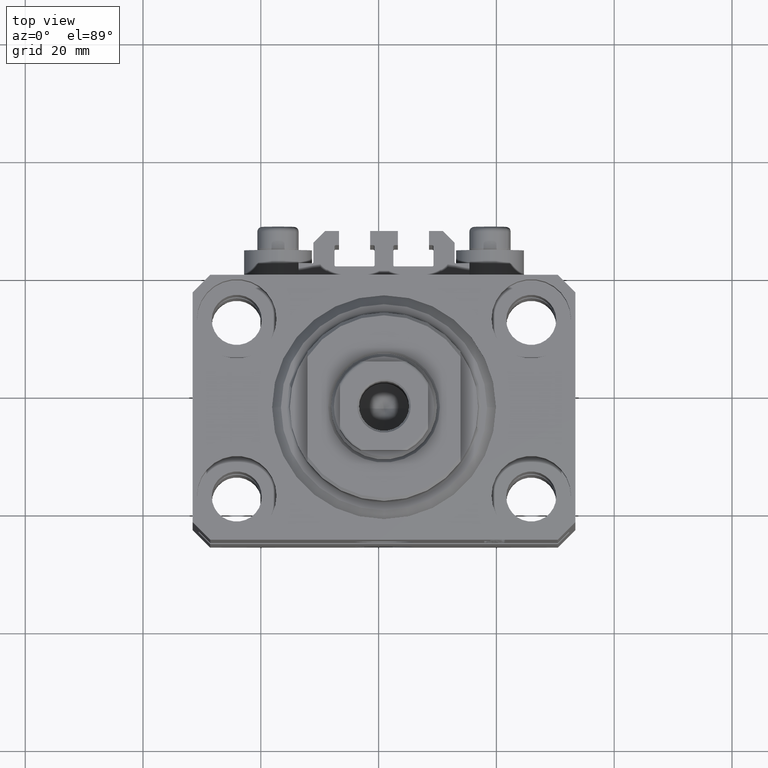
[diagram: clean part render]
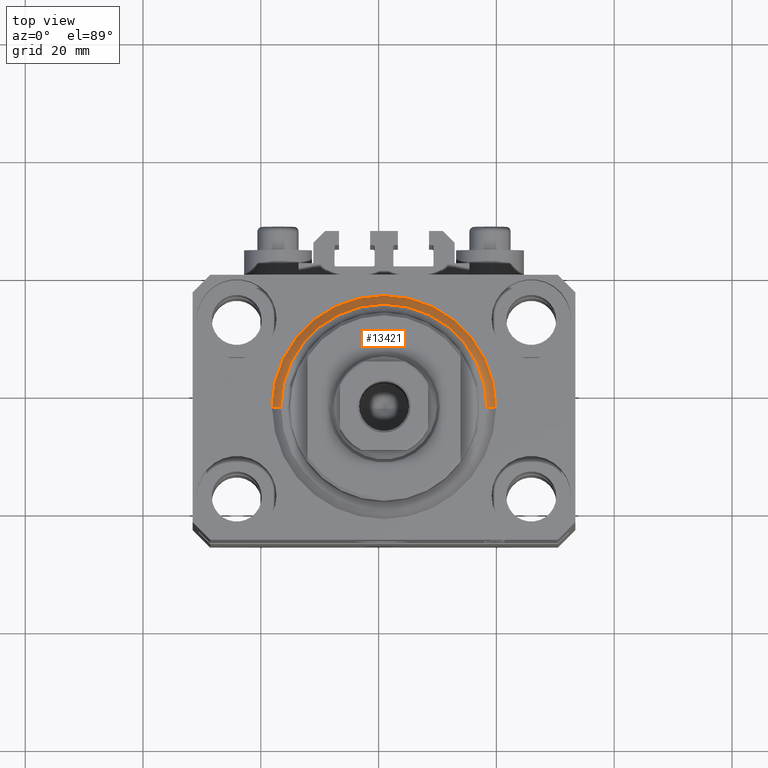
[diagram: same view with one face highlighted and labeled with its STEP entity id]
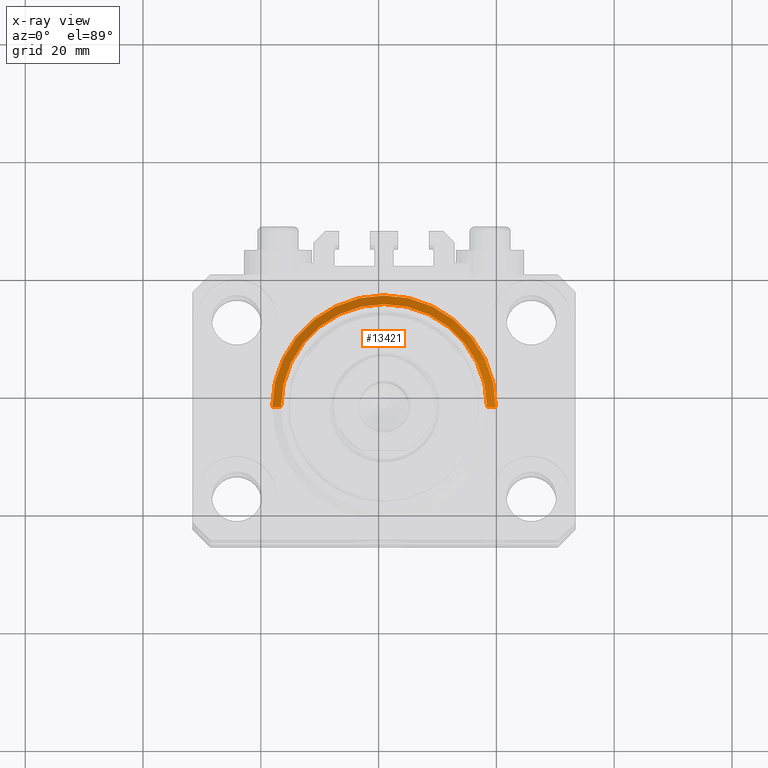
[diagram: x-ray of the same camera — body ghosted, the highlighted face saturated]
A machine part, top view. The second image highlights one B-rep face of the part: STEP entity #13421.
The next image is the same camera in x-ray: the body ghosted, the highlighted face saturated — about 0% of this face is hidden behind the body in this view.
In plain terms, the highlighted conical surface has half-angle 45 deg.
Its self-contained STEP definition (entity closure, byte-faithful):
#720 = AXIS2_PLACEMENT_3D ( 'NONE', #25801, #26270, #35870 ) ;
#1987 = DIRECTION ( 'NONE',  ( 0.7071067811865483499, 0.000000000000000000, 0.7071067811865467956 ) ) ;
#4208 = DIRECTION ( 'NONE',  ( -0.000000000000000000, -0.000000000000000000, -1.000000000000000000 ) ) ;
#8074 = EDGE_LOOP ( 'NONE', ( #45840, #28528, #19178, #41542 ) ) ;
#8330 = VERTEX_POINT ( 'NONE', #17135 ) ;
#10074 = CARTESIAN_POINT ( 'NONE',  ( 19.00000000000000000, 0.000000000000000000, 1.500000000000004885 ) ) ;
#13421 = ADVANCED_FACE ( 'NONE', ( #46817 ), #38792, .T. ) ;
#14130 = CARTESIAN_POINT ( 'NONE',  ( 0.000000000000000000, 0.000000000000000000, 1.500000000000004885 ) ) ;
#14247 = EDGE_CURVE ( 'NONE', #20000, #8330, #17041, .T. ) ;
#16007 = CARTESIAN_POINT ( 'NONE',  ( 19.00000000000000000, 2.326828918379970970E-15, 1.500000000000004885 ) ) ;
#17041 = LINE ( 'NONE', #28020, #21986 ) ;
#17135 = CARTESIAN_POINT ( 'NONE',  ( -19.00000000000000000, 0.000000000000000000, 1.500000000000004885 ) ) ;
#19178 = ORIENTED_EDGE ( 'NONE', *, *, #39509, .F. ) ;
#19405 = VECTOR ( 'NONE', #1987, 1000.000000000000000 ) ;
#20000 = VERTEX_POINT ( 'NONE', #45719 ) ;
#21986 = VECTOR ( 'NONE', #35643, 1000.000000000000000 ) ;
#22349 = CARTESIAN_POINT ( 'NONE',  ( 0.000000000000000000, 0.000000000000000000, 0.000000000000000000 ) ) ;
#24178 = EDGE_CURVE ( 'NONE', #20000, #24360, #35206, .T. ) ;
#24360 = VERTEX_POINT ( 'NONE', #35885 ) ;
#24414 = LINE ( 'NONE', #10074, #19405 ) ;
#25596 = DIRECTION ( 'NONE',  ( 1.000000000000000000, 0.000000000000000000, 0.000000000000000000 ) ) ;
#25801 = CARTESIAN_POINT ( 'NONE',  ( 0.000000000000000000, 0.000000000000000000, 1.500000000000004885 ) ) ;
#26270 = DIRECTION ( 'NONE',  ( -0.000000000000000000, -0.000000000000000000, 1.000000000000000000 ) ) ;
#27746 = CIRCLE ( 'NONE', #45224, 19.00000000000000000 ) ;
#28020 = CARTESIAN_POINT ( 'NONE',  ( -19.00000000000000000, 2.326828918379970970E-15, 1.500000000000004885 ) ) ;
#28528 = ORIENTED_EDGE ( 'NONE', *, *, #14247, .T. ) ;
#28709 = DIRECTION ( 'NONE',  ( -0.000000000000000000, -0.000000000000000000, 1.000000000000000000 ) ) ;
#35206 = CIRCLE ( 'NONE', #42840, 17.49999999999999289 ) ;
#35643 = DIRECTION ( 'NONE',  ( -0.7071067811865483499, 8.659560562354943952E-17, 0.7071067811865467956 ) ) ;
#35870 = DIRECTION ( 'NONE',  ( 1.000000000000000000, 0.000000000000000000, 0.000000000000000000 ) ) ;
#35885 = CARTESIAN_POINT ( 'NONE',  ( 17.49999999999999289, 0.000000000000000000, 0.000000000000000000 ) ) ;
#38792 = CONICAL_SURFACE ( 'NONE', #720, 19.00000000000000000, 0.7853981633974492782 ) ;
#39509 = EDGE_CURVE ( 'NONE', #45090, #8330, #27746, .T. ) ;
#40851 = EDGE_CURVE ( 'NONE', #24360, #45090, #24414, .T. ) ;
#41542 = ORIENTED_EDGE ( 'NONE', *, *, #40851, .F. ) ;
#42840 = AXIS2_PLACEMENT_3D ( 'NONE', #22349, #4208, #47127 ) ;
#45090 = VERTEX_POINT ( 'NONE', #16007 ) ;
#45224 = AXIS2_PLACEMENT_3D ( 'NONE', #14130, #28709, #25596 ) ;
#45719 = CARTESIAN_POINT ( 'NONE',  ( -17.49999999999999289, 2.234980408443919215E-15, 0.000000000000000000 ) ) ;
#45840 = ORIENTED_EDGE ( 'NONE', *, *, #24178, .F. ) ;
#46817 = FACE_OUTER_BOUND ( 'NONE', #8074, .T. ) ;
#47127 = DIRECTION ( 'NONE',  ( 1.000000000000000000, 0.000000000000000000, 0.000000000000000000 ) ) ;